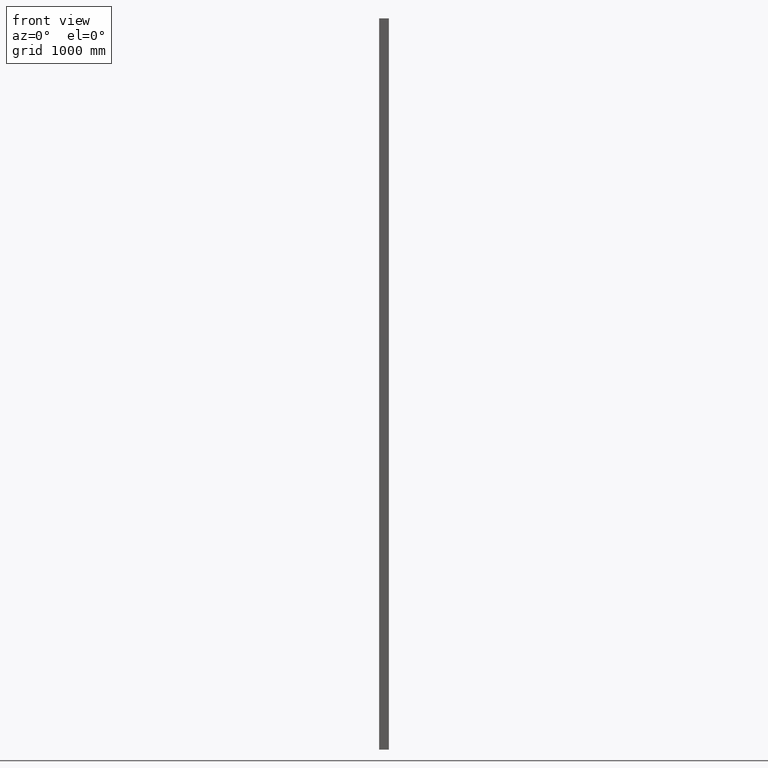
[diagram: clean part render]
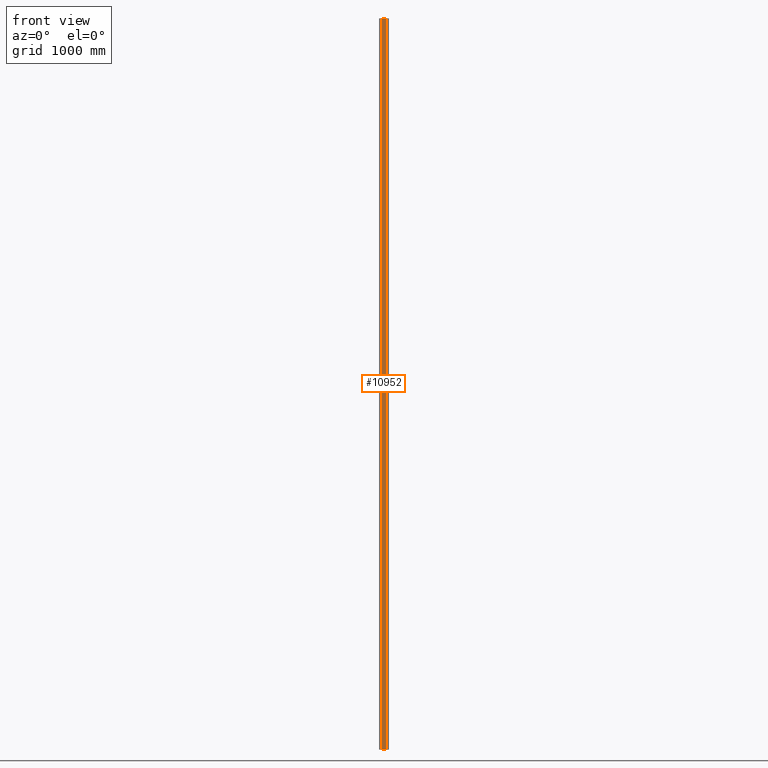
[diagram: same view with one face highlighted and labeled with its STEP entity id]
A machine part, front view. The second image highlights one B-rep face of the part: STEP entity #10952.
In plain terms, the highlighted planar face has unit normal (0, -1, 0).
Its self-contained STEP definition (entity closure, byte-faithful):
#843 = CARTESIAN_POINT ( 'NONE',  ( 4.000000000000000000, -60.00000000000000000, 0.0000000000000000000 ) ) ;
#846 = CARTESIAN_POINT ( 'NONE',  ( 36.00000000000000700, -60.00000000000000000, 0.0000000000000000000 ) ) ;
#1935 = VERTEX_POINT ( 'NONE', #24101 ) ;
#3368 = EDGE_CURVE ( 'NONE', #8529, #1935, #7594, .T. ) ;
#3369 = EDGE_CURVE ( 'NONE', #23210, #23214, #7596, .T. ) ;
#3918 = CARTESIAN_POINT ( 'NONE',  ( 4.000000000000000000, -60.00000000000000000, -6000.000000000000000 ) ) ;
#4695 = LINE ( 'NONE', #5184, #4696 ) ;
#4696 = VECTOR ( 'NONE', #5185, 1000.000000000000000 ) ;
#4703 = LINE ( 'NONE', #5192, #4704 ) ;
#4704 = VECTOR ( 'NONE', #5193, 1000.000000000000000 ) ;
#5184 = CARTESIAN_POINT ( 'NONE',  ( 4.000000000000000000, -60.00000000000000000, -3000.000000000000000 ) ) ;
#5185 = DIRECTION ( 'NONE',  ( 0.0000000000000000000, 0.0000000000000000000, -1.000000000000000000 ) ) ;
#5192 = CARTESIAN_POINT ( 'NONE',  ( 36.00000000000000700, -60.00000000000000000, -3000.000000000000000 ) ) ;
#5193 = DIRECTION ( 'NONE',  ( -0.0000000000000000000, -0.0000000000000000000, 1.000000000000000000 ) ) ;
#7594 = LINE ( 'NONE', #8129, #7595 ) ;
#7595 = VECTOR ( 'NONE', #8130, 1000.000000000000000 ) ;
#7596 = LINE ( 'NONE', #8131, #7597 ) ;
#7597 = VECTOR ( 'NONE', #8132, 1000.000000000000000 ) ;
#8129 = CARTESIAN_POINT ( 'NONE',  ( 4.000000000000000000, -60.00000000000000000, -6000.000000000000000 ) ) ;
#8130 = DIRECTION ( 'NONE',  ( 1.000000000000000000, 0.0000000000000000000, 0.0000000000000000000 ) ) ;
#8131 = CARTESIAN_POINT ( 'NONE',  ( -20.00000000000000000, -60.00000000000000000, 0.0000000000000000000 ) ) ;
#8132 = DIRECTION ( 'NONE',  ( 1.000000000000000000, 0.0000000000000000000, 0.0000000000000000000 ) ) ;
#8529 = VERTEX_POINT ( 'NONE', #3918 ) ;
#8921 = EDGE_CURVE ( 'NONE', #23210, #8529, #4695, .T. ) ;
#8925 = EDGE_CURVE ( 'NONE', #1935, #23214, #4703, .T. ) ;
#10952 = ADVANCED_FACE ( 'NONE', ( #11324 ), #11862, .T. ) ;
#11324 = FACE_OUTER_BOUND ( 'NONE', #26035, .T. ) ;
#11862 = PLANE ( 'NONE',  #17129 ) ;
#11863 = CARTESIAN_POINT ( 'NONE',  ( 4.000000000000000000, -60.00000000000000000, 0.0000000000000000000 ) ) ;
#11864 = DIRECTION ( 'NONE',  ( 0.0000000000000000000, -1.000000000000000000, 0.0000000000000000000 ) ) ;
#11865 = DIRECTION ( 'NONE',  ( 0.0000000000000000000, 0.0000000000000000000, -1.000000000000000000 ) ) ;
#17129 = AXIS2_PLACEMENT_3D ( 'NONE', #11863, #11864, #11865 ) ;
#23210 = VERTEX_POINT ( 'NONE', #843 ) ;
#23214 = VERTEX_POINT ( 'NONE', #846 ) ;
#24101 = CARTESIAN_POINT ( 'NONE',  ( 36.00000000000000700, -60.00000000000000000, -6000.000000000000000 ) ) ;
#26035 = EDGE_LOOP ( 'NONE', ( #27264, #27265, #27266, #27267 ) ) ;
#27264 = ORIENTED_EDGE ( 'NONE', *, *, #3368, .T. ) ;
#27265 = ORIENTED_EDGE ( 'NONE', *, *, #8925, .T. ) ;
#27266 = ORIENTED_EDGE ( 'NONE', *, *, #3369, .F. ) ;
#27267 = ORIENTED_EDGE ( 'NONE', *, *, #8921, .T. ) ;